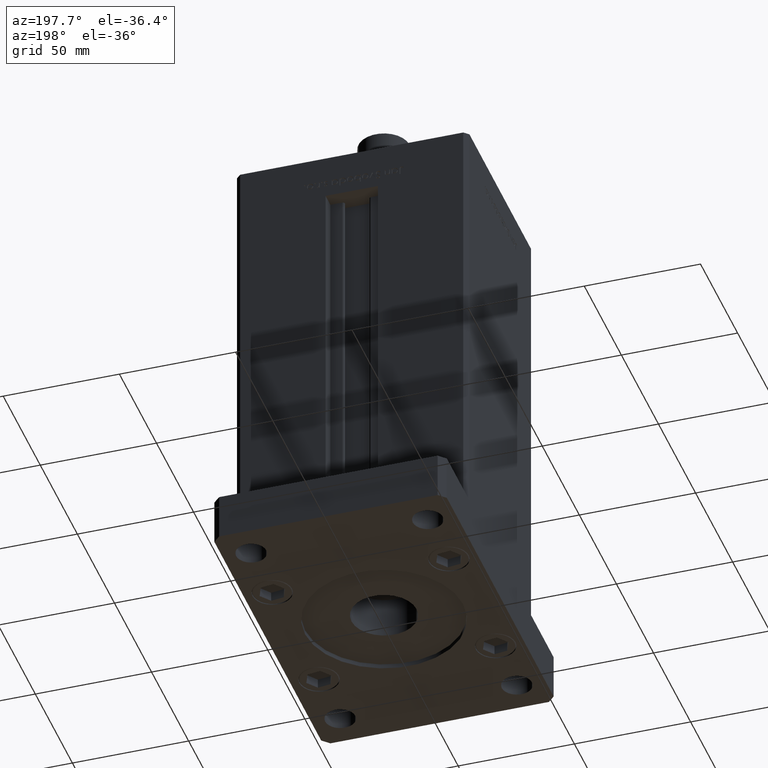
[diagram: clean part render]
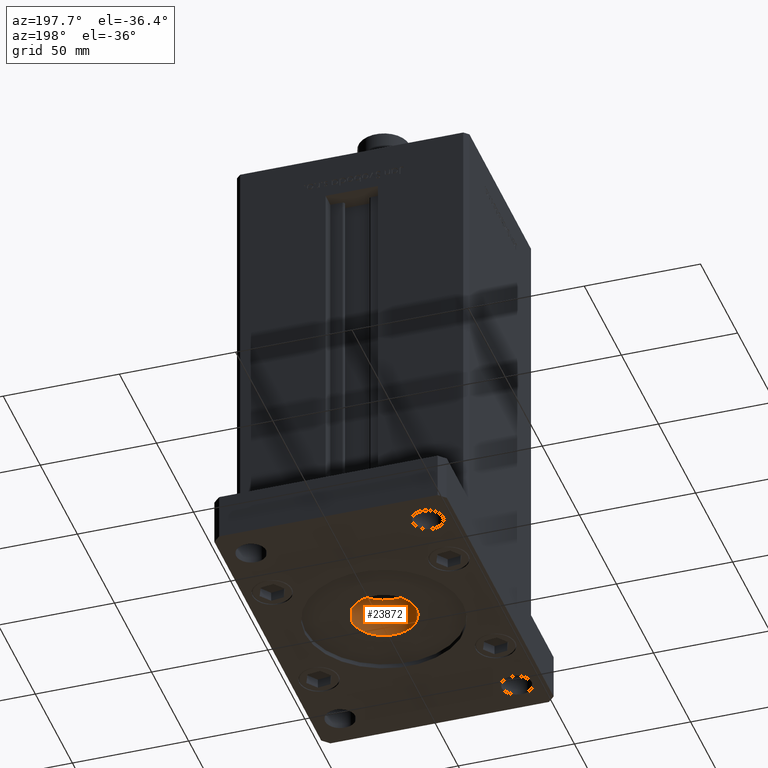
[diagram: same view with one face highlighted and labeled with its STEP entity id]
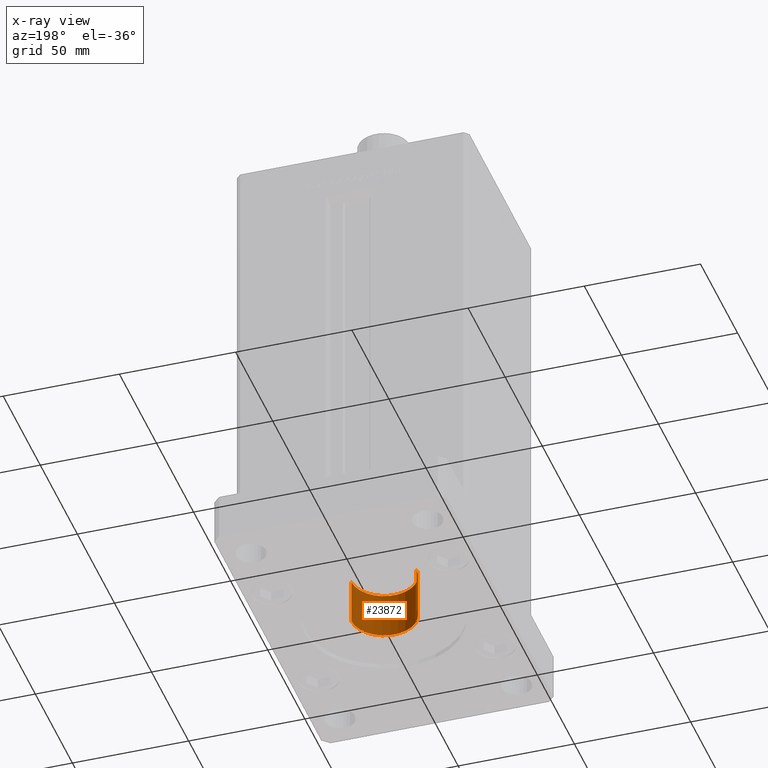
[diagram: x-ray of the same camera — body ghosted, the highlighted face saturated]
A machine part, auxiliary view. The second image highlights one B-rep face of the part: STEP entity #23872.
The next image is the same camera in x-ray: the body ghosted, the highlighted face saturated — about 0% of this face is hidden behind the body in this view.
In plain terms, the highlighted cylindrical surface (edge-blend (fillet) strip) has radius 14 mm, axis along (0, 0, 1).
Its self-contained STEP definition (entity closure, byte-faithful):
#500 = CARTESIAN_POINT ( 'NONE',  ( 14.00000000000000000, 0.000000000000000000, 2.000000000000000000 ) ) ;
#968 = CARTESIAN_POINT ( 'NONE',  ( 0.000000000000000000, 0.000000000000000000, 22.00000000000000000 ) ) ;
#1276 = CARTESIAN_POINT ( 'NONE',  ( 14.00000000000000000, 0.000000000000000000, 22.00000000000000000 ) ) ;
#1574 = CIRCLE ( 'NONE', #33979, 14.00000000000000000 ) ;
#2334 = EDGE_LOOP ( 'NONE', ( #7806, #39863, #34029, #11191 ) ) ;
#2485 = DIRECTION ( 'NONE',  ( -1.000000000000000000, 0.000000000000000000, 0.000000000000000000 ) ) ;
#3671 = CARTESIAN_POINT ( 'NONE',  ( -14.00000000000000000, 1.714505518806294638E-15, 2.000000000000000000 ) ) ;
#4472 = LINE ( 'NONE', #25028, #17248 ) ;
#5665 = DIRECTION ( 'NONE',  ( -0.000000000000000000, -0.000000000000000000, 1.000000000000000000 ) ) ;
#6129 = DIRECTION ( 'NONE',  ( -0.000000000000000000, -0.000000000000000000, 1.000000000000000000 ) ) ;
#7806 = ORIENTED_EDGE ( 'NONE', *, *, #24185, .F. ) ;
#8604 = VERTEX_POINT ( 'NONE', #500 ) ;
#8881 = DIRECTION ( 'NONE',  ( -0.000000000000000000, -0.000000000000000000, 1.000000000000000000 ) ) ;
#9656 = EDGE_CURVE ( 'NONE', #11606, #44720, #14184, .T. ) ;
#11191 = ORIENTED_EDGE ( 'NONE', *, *, #20314, .F. ) ;
#11606 = VERTEX_POINT ( 'NONE', #3671 ) ;
#13641 = DIRECTION ( 'NONE',  ( 1.000000000000000000, 0.000000000000000000, 0.000000000000000000 ) ) ;
#14184 = LINE ( 'NONE', #42967, #38057 ) ;
#15180 = CYLINDRICAL_SURFACE ( 'NONE', #44445, 14.00000000000000000 ) ;
#17248 = VECTOR ( 'NONE', #8881, 1000.000000000000000 ) ;
#20314 = EDGE_CURVE ( 'NONE', #8604, #21979, #4472, .T. ) ;
#21979 = VERTEX_POINT ( 'NONE', #1276 ) ;
#23114 = CARTESIAN_POINT ( 'NONE',  ( 0.000000000000000000, 0.000000000000000000, 0.000000000000000000 ) ) ;
#23872 = ADVANCED_FACE ( 'NONE', ( #51188 ), #15180, .F. ) ;
#24185 = EDGE_CURVE ( 'NONE', #11606, #8604, #1574, .T. ) ;
#25028 = CARTESIAN_POINT ( 'NONE',  ( 14.00000000000000000, 0.000000000000000000, 0.000000000000000000 ) ) ;
#25886 = CARTESIAN_POINT ( 'NONE',  ( -14.00000000000000000, 1.714505518806294638E-15, 22.00000000000000000 ) ) ;
#29444 = DIRECTION ( 'NONE',  ( 1.000000000000000000, 0.000000000000000000, 0.000000000000000000 ) ) ;
#29990 = DIRECTION ( 'NONE',  ( 0.000000000000000000, 0.000000000000000000, 1.000000000000000000 ) ) ;
#32611 = AXIS2_PLACEMENT_3D ( 'NONE', #968, #29990, #29444 ) ;
#33979 = AXIS2_PLACEMENT_3D ( 'NONE', #35391, #40056, #2485 ) ;
#34029 = ORIENTED_EDGE ( 'NONE', *, *, #41003, .T. ) ;
#35391 = CARTESIAN_POINT ( 'NONE',  ( 0.000000000000000000, 0.000000000000000000, 2.000000000000000000 ) ) ;
#38057 = VECTOR ( 'NONE', #5665, 1000.000000000000000 ) ;
#38753 = CIRCLE ( 'NONE', #32611, 14.00000000000000000 ) ;
#39863 = ORIENTED_EDGE ( 'NONE', *, *, #9656, .T. ) ;
#40056 = DIRECTION ( 'NONE',  ( -0.000000000000000000, -0.000000000000000000, 1.000000000000000000 ) ) ;
#41003 = EDGE_CURVE ( 'NONE', #44720, #21979, #38753, .T. ) ;
#42967 = CARTESIAN_POINT ( 'NONE',  ( -14.00000000000000000, 1.714505518806294638E-15, 0.000000000000000000 ) ) ;
#44445 = AXIS2_PLACEMENT_3D ( 'NONE', #23114, #6129, #13641 ) ;
#44720 = VERTEX_POINT ( 'NONE', #25886 ) ;
#51188 = FACE_OUTER_BOUND ( 'NONE', #2334, .T. ) ;